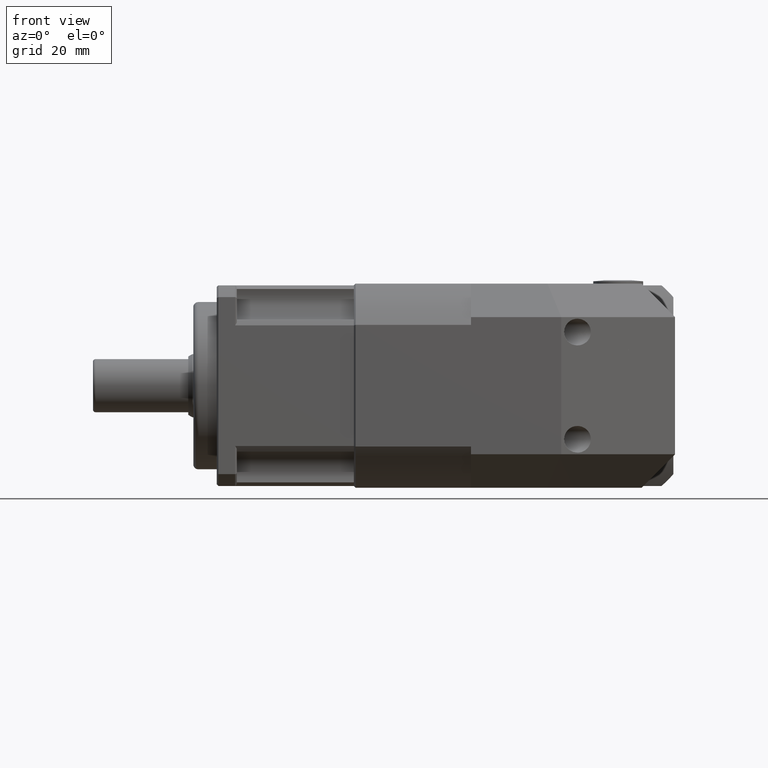
[diagram: clean part render]
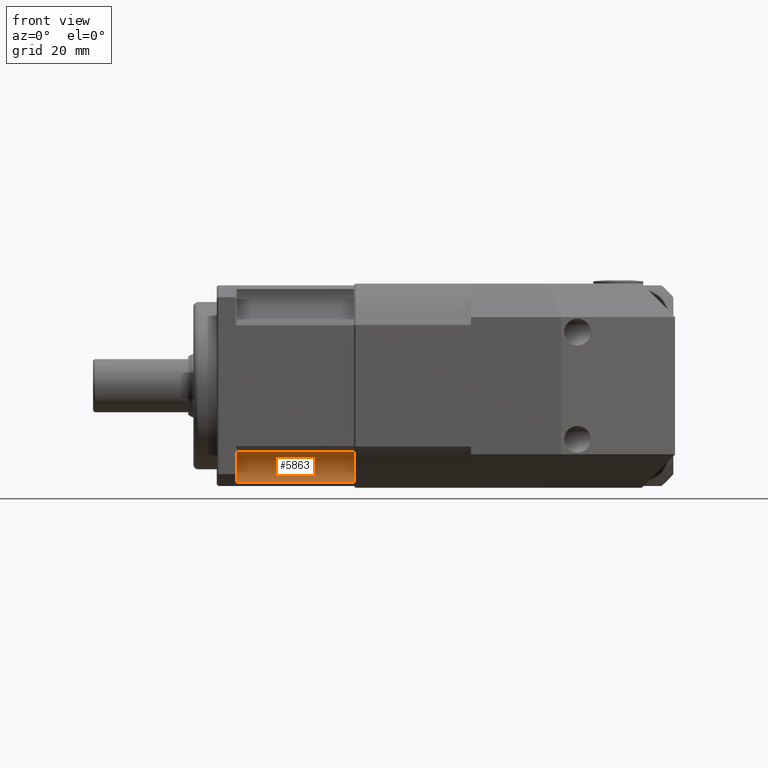
[diagram: same view with one face highlighted and labeled with its STEP entity id]
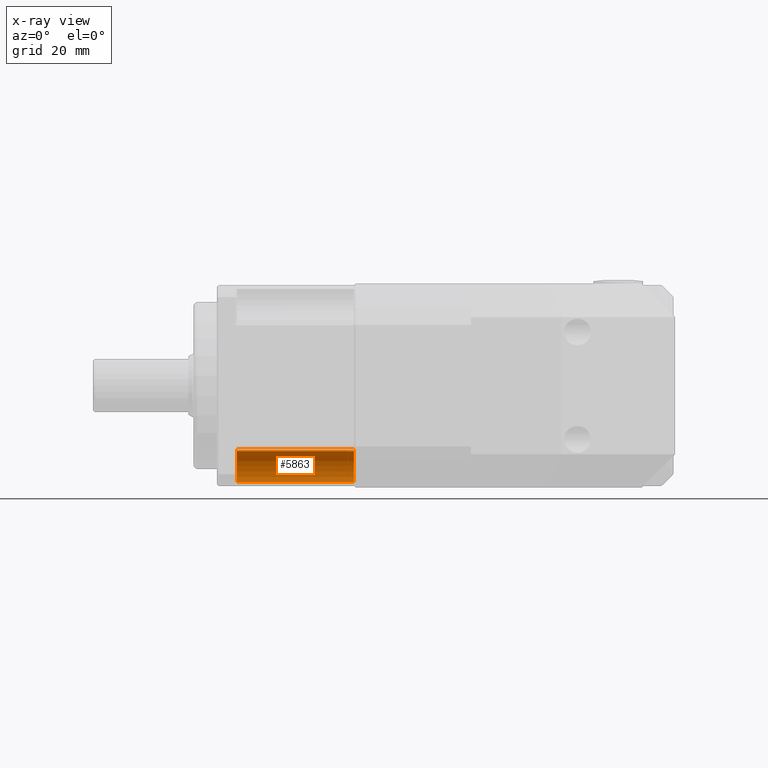
[diagram: x-ray of the same camera — body ghosted, the highlighted face saturated]
A machine part, front view. The second image highlights one B-rep face of the part: STEP entity #5863.
The next image is the same camera in x-ray: the body ghosted, the highlighted face saturated — about 0% of this face is hidden behind the body in this view.
In plain terms, the highlighted cylindrical surface (edge-blend (fillet) strip) has radius 7 mm, axis along (-1, -0, -0).
Its self-contained STEP definition (entity closure, byte-faithful):
#260=LINE('',#9379,#568);
#266=LINE('',#9412,#574);
#568=VECTOR('',#7451,35.);
#574=VECTOR('',#7485,35.);
#1395=FACE_OUTER_BOUND('',#1867,.T.);
#1867=EDGE_LOOP('',(#4303,#4304,#4305,#4306));
#2352=CIRCLE('',#6419,7.);
#2353=CIRCLE('',#6420,7.);
#2720=VERTEX_POINT('',#9377);
#2721=VERTEX_POINT('',#9378);
#2733=VERTEX_POINT('',#9410);
#2734=VERTEX_POINT('',#9411);
#3303=EDGE_CURVE('',#2720,#2721,#260,.T.);
#3319=EDGE_CURVE('',#2733,#2734,#266,.T.);
#3333=EDGE_CURVE('',#2720,#2734,#2352,.T.);
#3334=EDGE_CURVE('',#2721,#2733,#2353,.T.);
#4303=ORIENTED_EDGE('',*,*,#3303,.F.);
#4304=ORIENTED_EDGE('',*,*,#3333,.T.);
#4305=ORIENTED_EDGE('',*,*,#3319,.F.);
#4306=ORIENTED_EDGE('',*,*,#3334,.F.);
#5370=CYLINDRICAL_SURFACE('',#6418,7.);
#5863=ADVANCED_FACE('',(#1395),#5370,.F.);
#6418=AXIS2_PLACEMENT_3D('',#9439,#7512,#7513);
#6419=AXIS2_PLACEMENT_3D('',#9440,#7514,#7515);
#6420=AXIS2_PLACEMENT_3D('',#9441,#7516,#7517);
#7451=DIRECTION('',(1.,1.62717062046624E-15,3.12419122741346E-15));
#7485=DIRECTION('',(-1.,-1.62717062046624E-15,-3.12419122741346E-15));
#7512=DIRECTION('center_axis',(-1.,-1.62717062046624E-15,-3.12419122741346E-15));
#7513=DIRECTION('ref_axis',(1.62717062046623E-15,-1.,6.48002555706922E-16));
#7514=DIRECTION('center_axis',(-1.,-1.62717062046624E-15,-3.12419122741346E-15));
#7515=DIRECTION('ref_axis',(1.62717062046623E-15,-1.,6.48002555706922E-16));
#7516=DIRECTION('center_axis',(-1.,-1.62717062046624E-15,-3.12419122741346E-15));
#7517=DIRECTION('ref_axis',(1.62717062046623E-15,-1.,6.48002555706922E-16));
#9377=CARTESIAN_POINT('',(-31.5920804213369,19.2427215316634,-17.3417370313911));
#9378=CARTESIAN_POINT('',(3.40791957866312,19.2427215316634,-17.341737031391));
#9379=CARTESIAN_POINT('',(3.40791957866312,19.2427215316634,-17.341737031391));
#9410=CARTESIAN_POINT('',(3.40791957866313,28.429426283251,-26.5284417829786));
#9411=CARTESIAN_POINT('',(-31.5920804213369,28.4294262832509,-26.5284417829787));
#9412=CARTESIAN_POINT('',(3.40791957866313,28.429426283251,-26.5284417829786));
#9439=CARTESIAN_POINT('Origin',(3.40791957866314,21.9918629781464,-23.7793003364957));
#9440=CARTESIAN_POINT('Origin',(-31.5920804213369,21.9918629781463,-23.7793003364958));
#9441=CARTESIAN_POINT('Origin',(3.40791957866314,21.9918629781464,-23.7793003364957));